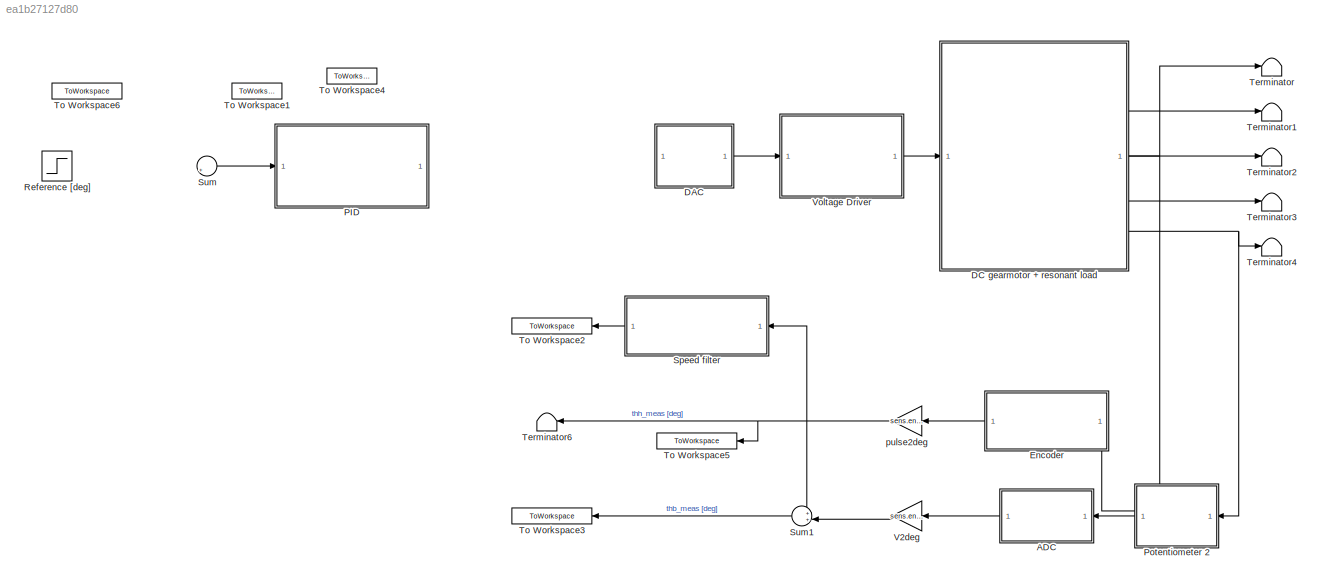
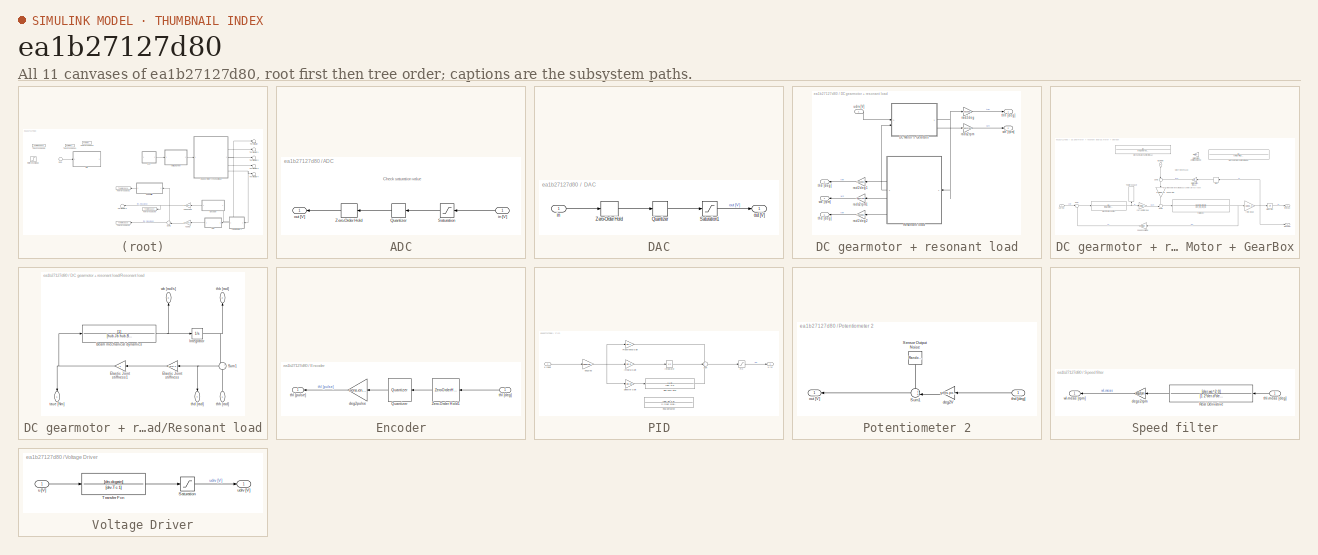
[diagram: thumbnail index - all 11 canvases of the model, root first then tree order]
MODEL slx_ea1b27127d80
KIND model
CONFIG AbsTol = auto
CONFIG EnableMultiTasking = off
CONFIG FixedStep = auto
CONFIG MaxStep = auto
CONFIG MinStep = auto
CONFIG RelTol = 1e-3
CONFIG SampleTimeConstraint = Unconstrained
CONFIG SolverName = VariableStepAuto
CONFIG StartTime = 0.0
CONFIG StopTime = 20
BLOCK [SubSystem] ADC
  NameLocation = top
BLOCK [Quantizer] ADC/Quantizer
  NameLocation = top
  QuantizationInterval = daq.adc.q
BLOCK [Saturate] ADC/Saturation
  LowerLimit = -10
  NameLocation = top
  UpperLimit = 10
BLOCK [ZeroOrderHold] ADC/Zero-Order Hold
  NameLocation = top
  SampleTime = Ts
BLOCK [Inport] ADC/in [V]
  NameLocation = top
BLOCK [Outport] ADC/out [V]
  NameLocation = top
BLOCK [SubSystem] DAC
BLOCK [Quantizer] DAC/Quantizer
  QuantizationInterval = daq.dac.q
BLOCK [Saturate] DAC/Saturation1
  LowerLimit = -10
  UpperLimit = 10
BLOCK [ZeroOrderHold] DAC/Zero-Order Hold
  SampleTime = Ts
BLOCK [Inport] DAC/in
BLOCK [Outport] DAC/out [V]
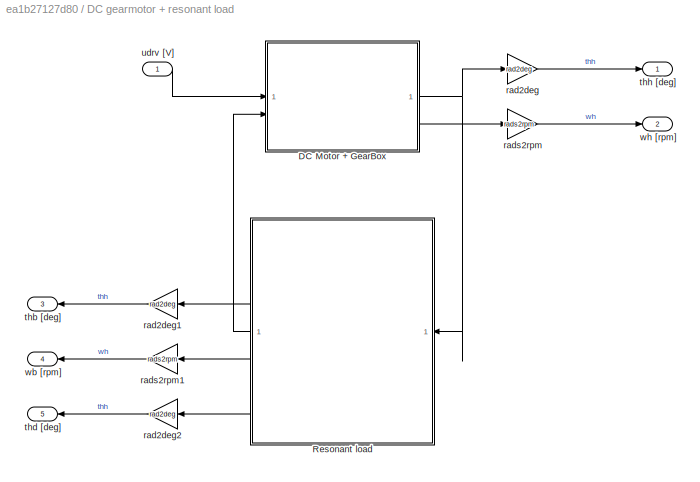
BLOCK [SubSystem] DC gearmotor + resonant load
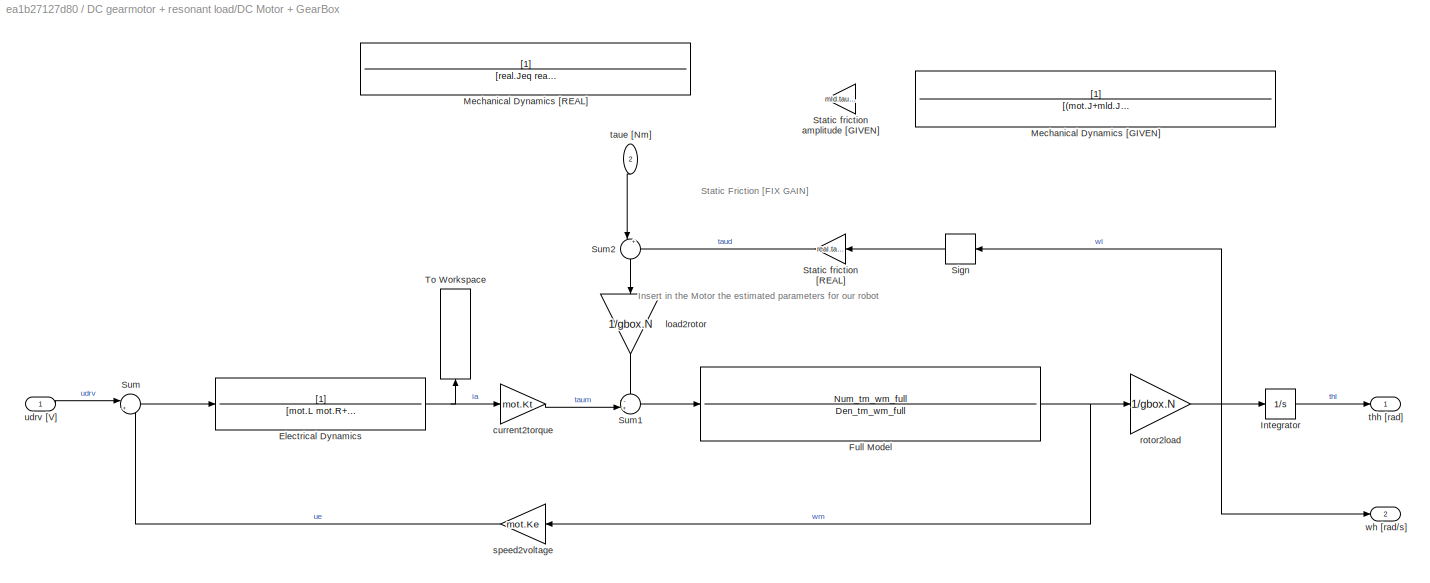
BLOCK [SubSystem] DC gearmotor + resonant load/DC Motor + GearBox
BLOCK [TransferFcn] DC gearmotor + resonant load/DC Motor + GearBox/Electrical Dynamics
  Denominator = [mot.L mot.R+sens.curr.Rs]
BLOCK [TransferFcn] DC gearmotor + resonant load/DC Motor + GearBox/Full Model
  Denominator = Den_tm_wm_full
  Numerator = Num_tm_wm_full
BLOCK [Integrator] DC gearmotor + resonant load/DC Motor + GearBox/Integrator
BLOCK [TransferFcn] DC gearmotor + resonant load/DC Motor + GearBox/Mechanical Dynamics [GIVEN]
  Commented = on
  Denominator = [(mot.J+mld.J/gbox.N^2) (mot.B+mld.B/gbox.N^2)]
BLOCK [TransferFcn] DC gearmotor + resonant load/DC Motor + GearBox/Mechanical Dynamics [REAL]
  Commented = on
  Denominator = [real.Jeq real.Beq]
BLOCK [Signum] DC gearmotor + resonant load/DC Motor + GearBox/Sign
  NameLocation = top
  ZeroCross = off
BLOCK [Gain] DC gearmotor + resonant load/DC Motor + GearBox/Static friction [REAL]
  Gain = real.tausf
  NameLocation = top
BLOCK [Gain] DC gearmotor + resonant load/DC Motor + GearBox/Static friction amplitude [GIVEN]
  Commented = on
  Gain = mld.tausf
  NameLocation = top
BLOCK [Sum] DC gearmotor + resonant load/DC Motor + GearBox/Sum
  Inputs = |+-
BLOCK [Sum] DC gearmotor + resonant load/DC Motor + GearBox/Sum1
  Inputs = -+|
BLOCK [Sum] DC gearmotor + resonant load/DC Motor + GearBox/Sum2
  Inputs = |++
  NameLocation = left
BLOCK [ToWorkspace] DC gearmotor + resonant load/DC Motor + GearBox/To Workspace
  FixptAsFi = on
  MaxDataPoints = inf
  NameLocation = right
  SampleTime = -1
  SaveFormat = Timeseries
  VariableName = ia
BLOCK [Gain] DC gearmotor + resonant load/DC Motor + GearBox/current2torque
  Gain = mot.Kt
BLOCK [Gain] DC gearmotor + resonant load/DC Motor + GearBox/load2rotor
  Gain = 1/gbox.N
  NameLocation = left
BLOCK [Gain] DC gearmotor + resonant load/DC Motor + GearBox/rotor2load
  Gain = 1/gbox.N
BLOCK [Gain] DC gearmotor + resonant load/DC Motor + GearBox/speed2voltage
  Gain = mot.Ke
  NameLocation = top
BLOCK [Inport] DC gearmotor + resonant load/DC Motor + GearBox/taue [Nm]
  NameLocation = left
  Port = 2
BLOCK [Outport] DC gearmotor + resonant load/DC Motor + GearBox/thh [rad]
BLOCK [Inport] DC gearmotor + resonant load/DC Motor + GearBox/udrv [V]
BLOCK [Outport] DC gearmotor + resonant load/DC Motor + GearBox/wh [rad//s]
  Port = 2
BLOCK [SubSystem] DC gearmotor + resonant load/Resonant load
  NameLocation = top
BLOCK [TransferFcn] DC gearmotor + resonant load/Resonant load/Beam mechanical dynamics
  Denominator = [hub.Jb hub.Bb]
BLOCK [Gain] DC gearmotor + resonant load/Resonant load/Elastic Joint stiffness
  Gain = joint.k
  NameLocation = top
BLOCK [Gain] DC gearmotor + resonant load/Resonant load/Elastic Joint stiffness1
  Gain = -1
  NameLocation = top
BLOCK [Integrator] DC gearmotor + resonant load/Resonant load/Integrator
BLOCK [Sum] DC gearmotor + resonant load/Resonant load/Sum1
  Inputs = +-
  NameLocation = top
BLOCK [Outport] DC gearmotor + resonant load/Resonant load/taue [Nm]
  NameLocation = left
BLOCK [Outport] DC gearmotor + resonant load/Resonant load/thb [rad]
  NameLocation = right
  Port = 2
BLOCK [Outport] DC gearmotor + resonant load/Resonant load/thd [rad]
  NameLocation = left
  Port = 4
BLOCK [Inport] DC gearmotor + resonant load/Resonant load/thh [rad]
  NameLocation = right
BLOCK [Outport] DC gearmotor + resonant load/Resonant load/wb [rad//s]
  NameLocation = right
  Port = 3
BLOCK [Gain] DC gearmotor + resonant load/rad2deg
  Gain = rad2deg
BLOCK [Gain] DC gearmotor + resonant load/rad2deg1
  Gain = rad2deg
  NameLocation = top
BLOCK [Gain] DC gearmotor + resonant load/rad2deg2
  Gain = rad2deg
  NameLocation = top
BLOCK [Gain] DC gearmotor + resonant load/rads2rpm
  Gain = rads2rpm
BLOCK [Gain] DC gearmotor + resonant load/rads2rpm1
  Gain = rads2rpm
  NameLocation = top
BLOCK [Outport] DC gearmotor + resonant load/thb [deg]
  NameLocation = top
  Port = 3
BLOCK [Outport] DC gearmotor + resonant load/thd [deg]
  NameLocation = top
  Port = 5
BLOCK [Outport] DC gearmotor + resonant load/thh [deg]
BLOCK [Inport] DC gearmotor + resonant load/udrv [V]
BLOCK [Outport] DC gearmotor + resonant load/wb [rpm]
  NameLocation = top
  Port = 4
BLOCK [Outport] DC gearmotor + resonant load/wh [rpm]
  Port = 2
BLOCK [SubSystem] Encoder
  NameLocation = top
BLOCK [Quantizer] Encoder/Quantizer
  NameLocation = top
  QuantizationInterval = sens.enc.pulse2deg
BLOCK [ZeroOrderHold] Encoder/Zero-Order Hold1
  NameLocation = top
  SampleTime = Ts
BLOCK [Gain] Encoder/deg2pulse
  Gain = sens.enc.deg2pulse
BLOCK [Inport] Encoder/thl [deg]
BLOCK [Outport] Encoder/thl [pulse]
BLOCK [SubSystem] PID
BLOCK [Gain] PID/Deivatve Gain
  Gain = pid.Kd
BLOCK [Saturate] PID/FIX 
  LowerLimit = -10
  UpperLimit = 10
BLOCK [TransferFcn] PID/High pass filter
  Denominator = [der.Tl 1]
  Numerator = [1 0]
BLOCK [Gain] PID/Integral Gain
  Gain = pid.Ki
BLOCK [Integrator] PID/Integrator
BLOCK [Gain] PID/Proportional Gain
  Gain = pid.K
BLOCK [TransferFcn] PID/Real Derivative
  Denominator = [1 2*der.d*der.wc der.wc^2]
  Numerator = [der.wc^2 0]
BLOCK [Sum] PID/Sum
  Inputs = +++
BLOCK [Gain] PID/deg2rad
  Gain = deg2rad
BLOCK [Inport] PID/e [deg]
BLOCK [Outport] PID/u [V]
BLOCK [SubSystem] Potentiometer 2
  NameLocation = top
BLOCK [RandomNumber] Potentiometer 2/Sensor Output Noise
  NameLocation = left
  SampleTime = 0.1
  Variance = sens.pot2.var
BLOCK [Sum] Potentiometer 2/Sum1
  Inputs = ++|
  NameLocation = top
BLOCK [Gain] Potentiometer 2/deg2V
  Gain = sens.pot2.deg2V
  NameLocation = top
BLOCK [Outport] Potentiometer 2/out [V]
BLOCK [Inport] Potentiometer 2/thd [deg]
BLOCK [Step] Reference [deg]
  After = simul.stepdeg
BLOCK [SubSystem] Speed filter
  NameLocation = top
BLOCK [TransferFcn] Speed filter/Real Derivative
  Denominator = [1 2*der.d*der.wc der.wc^2]
  NameLocation = top
  Numerator = [der.wc^2 0]
BLOCK [Gain] Speed filter/degs2rpm
  Gain = degs2rpm
BLOCK [Inport] Speed filter/thl-meas [deg]
BLOCK [Outport] Speed filter/wl-meas [rpm]
BLOCK [Sum] Sum
  Inputs = |+-
BLOCK [Sum] Sum1
  Inputs = ++|
  NameLocation = top
BLOCK [Terminator] Terminator
BLOCK [Terminator] Terminator1
BLOCK [Terminator] Terminator2
BLOCK [Terminator] Terminator3
BLOCK [Terminator] Terminator4
BLOCK [Terminator] Terminator6
  NameLocation = top
BLOCK [ToWorkspace] To Workspace1
  FixptAsFi = on
  MaxDataPoints = inf
  NameLocation = top
  SampleTime = -1
  SaveFormat = Timeseries
  VariableName = e
BLOCK [ToWorkspace] To Workspace2
  FixptAsFi = on
  MaxDataPoints = inf
  NameLocation = top
  SampleTime = Ts
  SaveFormat = Timeseries
  VariableName = wh_meas
BLOCK [ToWorkspace] To Workspace3
  FixptAsFi = on
  MaxDataPoints = inf
  NameLocation = top
  SampleTime = Ts
  SaveFormat = Timeseries
  VariableName = thb_meas
BLOCK [ToWorkspace] To Workspace4
  FixptAsFi = on
  MaxDataPoints = inf
  SampleTime = Ts
  SaveFormat = Timeseries
  VariableName = u
BLOCK [ToWorkspace] To Workspace5
  FixptAsFi = on
  MaxDataPoints = inf
  NameLocation = top
  SampleTime = Ts
  SaveFormat = Timeseries
  VariableName = thh_meas
BLOCK [ToWorkspace] To Workspace6
  FixptAsFi = on
  MaxDataPoints = inf
  NameLocation = top
  SampleTime = -1
  SaveFormat = Timeseries
  VariableName = thh_ref
BLOCK [Gain] V2deg
  Gain = sens.enc.pulse2deg
  NameLocation = top
BLOCK [SubSystem] Voltage Driver
BLOCK [Saturate] Voltage Driver/Saturation
  LowerLimit = -12
  UpperLimit = 12
BLOCK [TransferFcn] Voltage Driver/Transfer Fcn
  Denominator = [drv.Tc 1]
  Numerator = [drv.dcgain]
BLOCK [Inport] Voltage Driver/u [V]
BLOCK [Outport] Voltage Driver/udrv [V]
BLOCK [Gain] pulse2deg
  Gain = sens.enc.pulse2deg
  NameLocation = top
ANNOTATION ADC: Check saturation value
ANNOTATION DC gearmotor + resonant load/DC Motor + GearBox: Insert in the Motor the estimated parameters for our robot
ANNOTATION DC gearmotor + resonant load/DC Motor + GearBox: Static Friction [FIX GAIN]
LINE ADC/Quantizer:1 -> ADC/Zero-Order Hold:1
LINE ADC/Saturation:1 -> ADC/Quantizer:1
LINE ADC/Zero-Order Hold:1 -> ADC/out [V]:1
LINE ADC/in [V]:1 -> ADC/Saturation:1
LINE ADC:1 -> V2deg:1
LINE DAC/Quantizer:1 -> DAC/Saturation1:1
LINE DAC/Saturation1:1 -> DAC/out [V]:1
LINE DAC/Zero-Order Hold:1 -> DAC/Quantizer:1
LINE DAC/in:1 -> DAC/Zero-Order Hold:1
LINE DAC:1 -> Voltage Driver:1
NET DC gearmotor + resonant load/DC Motor + GearBox/Electrical Dynamics:1 -> DC gearmotor + resonant load/DC Motor + GearBox/To Workspace:1, DC gearmotor + resonant load/DC Motor + GearBox/current2torque:1
NET DC gearmotor + resonant load/DC Motor + GearBox/Full Model:1 -> DC gearmotor + resonant load/DC Motor + GearBox/rotor2load:1, DC gearmotor + resonant load/DC Motor + GearBox/speed2voltage:1
LINE DC gearmotor + resonant load/DC Motor + GearBox/Integrator:1 -> DC gearmotor + resonant load/DC Motor + GearBox/thh [rad]:1
LINE DC gearmotor + resonant load/DC Motor + GearBox/Sign:1 -> DC gearmotor + resonant load/DC Motor + GearBox/Static friction [REAL]:1
LINE DC gearmotor + resonant load/DC Motor + GearBox/Static friction [REAL]:1 -> DC gearmotor + resonant load/DC Motor + GearBox/Sum2:2
LINE DC gearmotor + resonant load/DC Motor + GearBox/Sum1:1 -> DC gearmotor + resonant load/DC Motor + GearBox/Full Model:1
LINE DC gearmotor + resonant load/DC Motor + GearBox/Sum2:1 -> DC gearmotor + resonant load/DC Motor + GearBox/load2rotor:1
LINE DC gearmotor + resonant load/DC Motor + GearBox/Sum:1 -> DC gearmotor + resonant load/DC Motor + GearBox/Electrical Dynamics:1
LINE DC gearmotor + resonant load/DC Motor + GearBox/current2torque:1 -> DC gearmotor + resonant load/DC Motor + GearBox/Sum1:2
LINE DC gearmotor + resonant load/DC Motor + GearBox/load2rotor:1 -> DC gearmotor + resonant load/DC Motor + GearBox/Sum1:1
NET DC gearmotor + resonant load/DC Motor + GearBox/rotor2load:1 -> DC gearmotor + resonant load/DC Motor + GearBox/Integrator:1, DC gearmotor + resonant load/DC Motor + GearBox/Sign:1, DC gearmotor + resonant load/DC Motor + GearBox/wh [rad//s]:1
LINE DC gearmotor + resonant load/DC Motor + GearBox/speed2voltage:1 -> DC gearmotor + resonant load/DC Motor + GearBox/Sum:2
LINE DC gearmotor + resonant load/DC Motor + GearBox/taue [Nm]:1 -> DC gearmotor + resonant load/DC Motor + GearBox/Sum2:1
LINE DC gearmotor + resonant load/DC Motor + GearBox/udrv [V]:1 -> DC gearmotor + resonant load/DC Motor + GearBox/Sum:1
NET DC gearmotor + resonant load/DC Motor + GearBox:1 -> DC gearmotor + resonant load/Resonant load:1, DC gearmotor + resonant load/rad2deg:1
LINE DC gearmotor + resonant load/DC Motor + GearBox:2 -> DC gearmotor + resonant load/rads2rpm:1
NET DC gearmotor + resonant load/Resonant load/Beam mechanical dynamics:1 -> DC gearmotor + resonant load/Resonant load/Integrator:1, DC gearmotor + resonant load/Resonant load/wb [rad//s]:1
NET DC gearmotor + resonant load/Resonant load/Elastic Joint stiffness1:1 -> DC gearmotor + resonant load/Resonant load/Beam mechanical dynamics:1, DC gearmotor + resonant load/Resonant load/taue [Nm]:1
LINE DC gearmotor + resonant load/Resonant load/Elastic Joint stiffness:1 -> DC gearmotor + resonant load/Resonant load/Elastic Joint stiffness1:1
NET DC gearmotor + resonant load/Resonant load/Integrator:1 -> DC gearmotor + resonant load/Resonant load/Sum1:1, DC gearmotor + resonant load/Resonant load/thb [rad]:1
NET DC gearmotor + resonant load/Resonant load/Sum1:1 -> DC gearmotor + resonant load/Resonant load/Elastic Joint stiffness:1, DC gearmotor + resonant load/Resonant load/thd [rad]:1
LINE DC gearmotor + resonant load/Resonant load/thh [rad]:1 -> DC gearmotor + resonant load/Resonant load/Sum1:2
LINE DC gearmotor + resonant load/Resonant load:1 -> DC gearmotor + resonant load/DC Motor + GearBox:2
LINE DC gearmotor + resonant load/Resonant load:2 -> DC gearmotor + resonant load/rad2deg1:1
LINE DC gearmotor + resonant load/Resonant load:3 -> DC gearmotor + resonant load/rads2rpm1:1
LINE DC gearmotor + resonant load/Resonant load:4 -> DC gearmotor + resonant load/rad2deg2:1
LINE DC gearmotor + resonant load/rad2deg1:1 -> DC gearmotor + resonant load/thb [deg]:1
LINE DC gearmotor + resonant load/rad2deg2:1 -> DC gearmotor + resonant load/thd [deg]:1
LINE DC gearmotor + resonant load/rad2deg:1 -> DC gearmotor + resonant load/thh [deg]:1
LINE DC gearmotor + resonant load/rads2rpm1:1 -> DC gearmotor + resonant load/wb [rpm]:1
LINE DC gearmotor + resonant load/rads2rpm:1 -> DC gearmotor + resonant load/wh [rpm]:1
LINE DC gearmotor + resonant load/udrv [V]:1 -> DC gearmotor + resonant load/DC Motor + GearBox:1
NET DC gearmotor + resonant load:1 -> Encoder:1, Terminator:1
LINE DC gearmotor + resonant load:2 -> Terminator1:1
LINE DC gearmotor + resonant load:3 -> Terminator2:1
LINE DC gearmotor + resonant load:4 -> Terminator3:1
NET DC gearmotor + resonant load:5 -> Potentiometer 2:1, Terminator4:1
LINE Encoder/Quantizer:1 -> Encoder/deg2pulse:1
LINE Encoder/Zero-Order Hold1:1 -> Encoder/Quantizer:1
LINE Encoder/deg2pulse:1 -> Encoder/thl [pulse]:1
LINE Encoder/thl [deg]:1 -> Encoder/Zero-Order Hold1:1
LINE Encoder:1 -> pulse2deg:1
LINE PID/Deivatve Gain:1 -> PID/High pass filter:1
LINE PID/FIX :1 -> PID/u [V]:1
LINE PID/High pass filter:1 -> PID/Sum:3
LINE PID/Integral Gain:1 -> PID/Integrator:1
LINE PID/Integrator:1 -> PID/Sum:2
LINE PID/Proportional Gain:1 -> PID/Sum:1
LINE PID/Sum:1 -> PID/FIX :1
NET PID/deg2rad:1 -> PID/Deivatve Gain:1, PID/Integral Gain:1, PID/Proportional Gain:1
LINE PID/e [deg]:1 -> PID/deg2rad:1
LINE Potentiometer 2/Sensor Output Noise:1 -> Potentiometer 2/Sum1:1
LINE Potentiometer 2/Sum1:1 -> Potentiometer 2/out [V]:1
LINE Potentiometer 2/deg2V:1 -> Potentiometer 2/Sum1:2
LINE Potentiometer 2/thd [deg]:1 -> Potentiometer 2/deg2V:1
LINE Potentiometer 2:1 -> ADC:1
LINE Speed filter/Real Derivative:1 -> Speed filter/degs2rpm:1
LINE Speed filter/degs2rpm:1 -> Speed filter/wl-meas [rpm]:1
LINE Speed filter/thl-meas [deg]:1 -> Speed filter/Real Derivative:1
LINE Speed filter:1 -> To Workspace2:1
LINE Sum1:1 -> To Workspace3:1
LINE Sum:1 -> PID:1
LINE V2deg:1 -> Sum1:2
LINE Voltage Driver/Saturation:1 -> Voltage Driver/udrv [V]:1
LINE Voltage Driver/Transfer Fcn:1 -> Voltage Driver/Saturation:1
LINE Voltage Driver/u [V]:1 -> Voltage Driver/Transfer Fcn:1
LINE Voltage Driver:1 -> DC gearmotor + resonant load:1
NET pulse2deg:1 -> Speed filter:1, Sum1:1, Terminator6:1, To Workspace5:1
note: NET lines group one-source signal fan-out (src -> all destinations, sorted); 1:1 wires keep LINE
